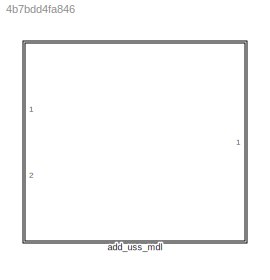
MODEL slx_4b7bdd4fa846
KIND model
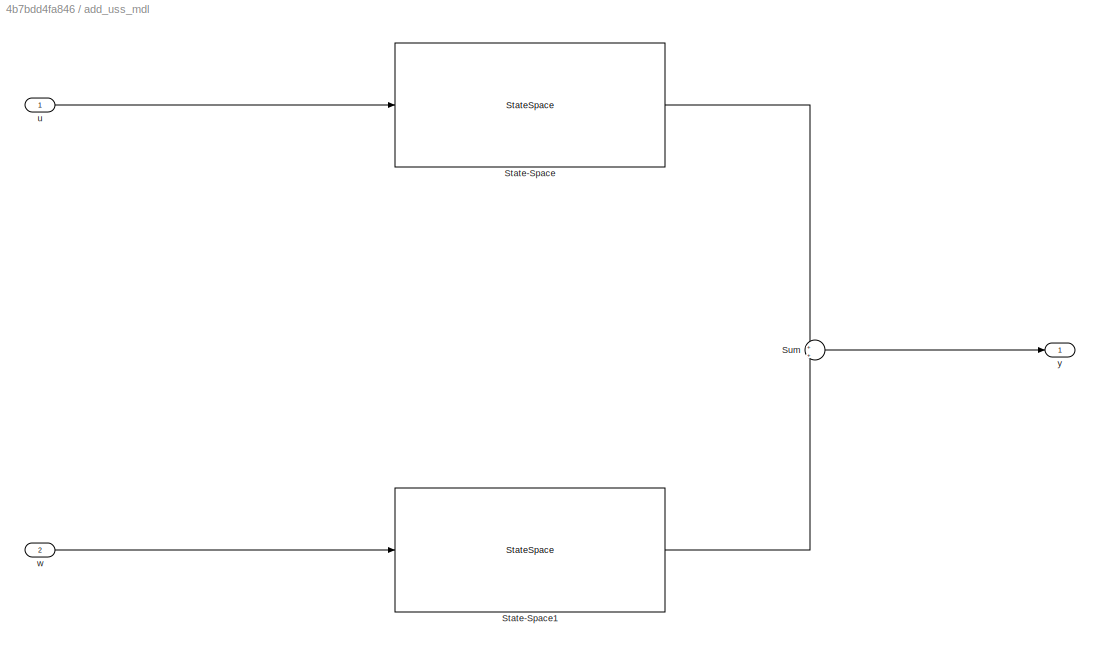
BLOCK [SubSystem] add_uss_mdl
  FunctionWithSeparateData = off
  MaskHideContents = off
  MinAlgLoopOccurrences = off
  Opaque = off
  Ports = [2, 1]
  PropExecContextOutsideSubsystem = off
  RTWSystemCode = Auto
  RequestExecContextInheritance = off
BLOCK [StateSpace] add_uss_mdl/State-Space
  A = add_usys_d.continuous.matrices.A
  B = add_usys_d.continuous.matrices.B
  C = add_usys_d.continuous.matrices.C
  D = add_usys_d.continuous.matrices.D
BLOCK [StateSpace] add_uss_mdl/State-Space1
  A = add_usys_d.continuous.matrices.A
  B = add_usys_d.continuous.matrices.E
  C = add_usys_d.continuous.matrices.C
  D = add_usys_d.continuous.matrices.D
BLOCK [Sum] add_uss_mdl/Sum
  IconShape = round
  InputSameDT = off
  Inputs = +|+
  OutDataTypeStr = Inherit: Inherit via internal rule
  Ports = [2, 1]
  SaturateOnIntegerOverflow = off
BLOCK [Inport] add_uss_mdl/u
  IconDisplay = Port number
BLOCK [Inport] add_uss_mdl/w
  IconDisplay = Port number
  Port = 2
BLOCK [Outport] add_uss_mdl/y
  IconDisplay = Port number
LINE add_uss_mdl/State-Space1:1 -> add_uss_mdl/Sum:2
LINE add_uss_mdl/State-Space:1 -> add_uss_mdl/Sum:1
LINE add_uss_mdl/Sum:1 -> add_uss_mdl/y:1
LINE add_uss_mdl/u:1 -> add_uss_mdl/State-Space:1
LINE add_uss_mdl/w:1 -> add_uss_mdl/State-Space1:1
